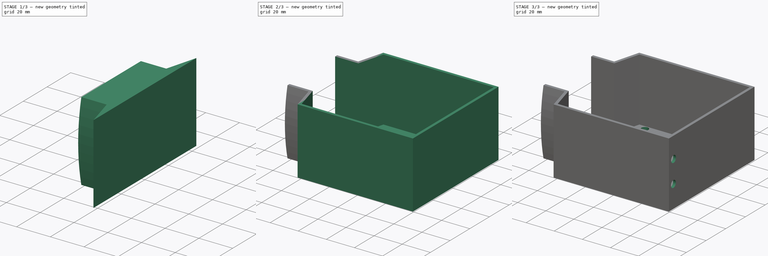
[diagram: build sequence overview — one tinted view per stage of 3, left to right]
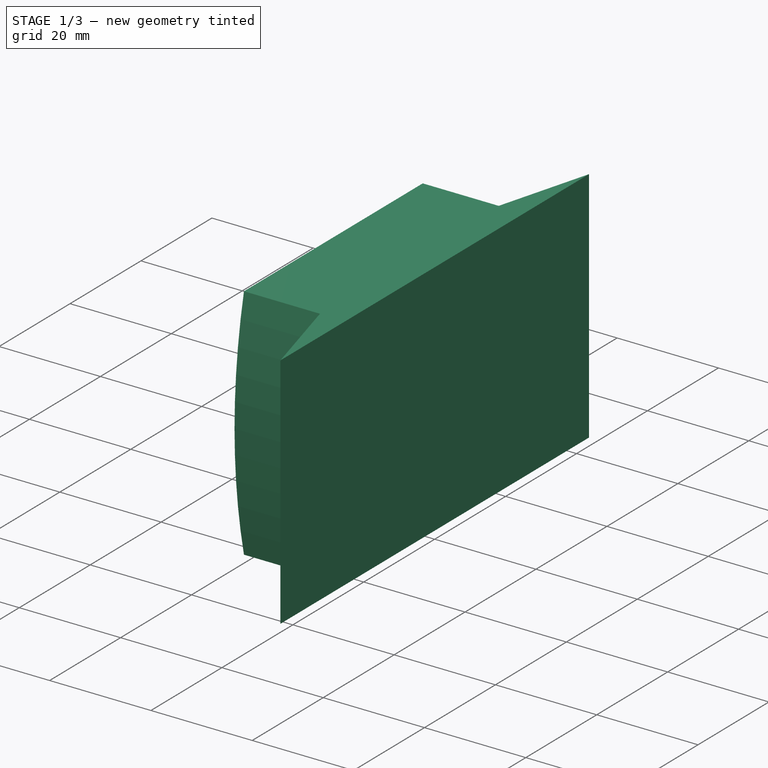
[diagram: stage 1 of 3 — iso view after this stage's code; geometry added in this stage tinted green]
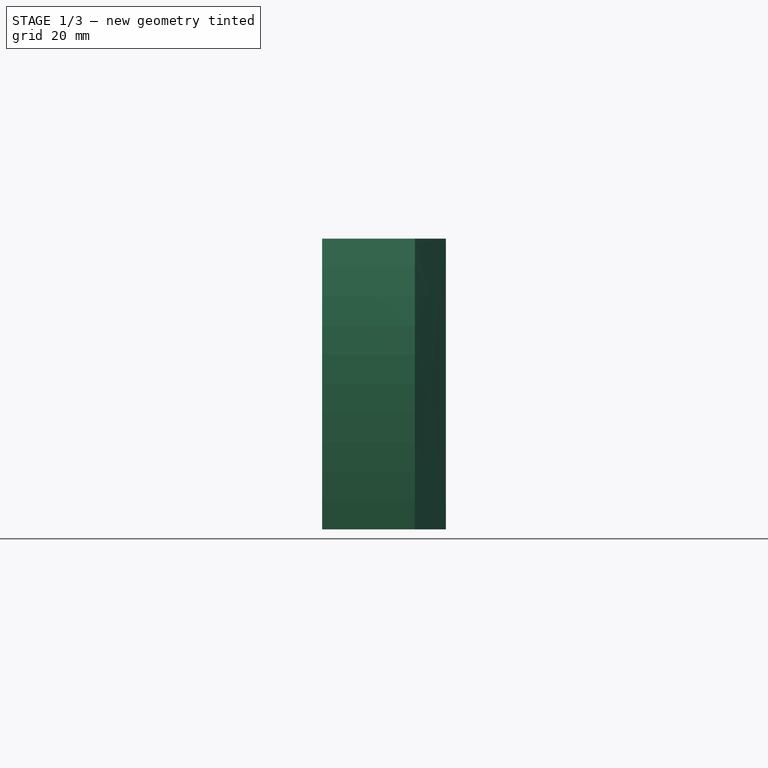
[diagram: stage 1 of 3 — front view after this stage's code; geometry added in this stage tinted green]
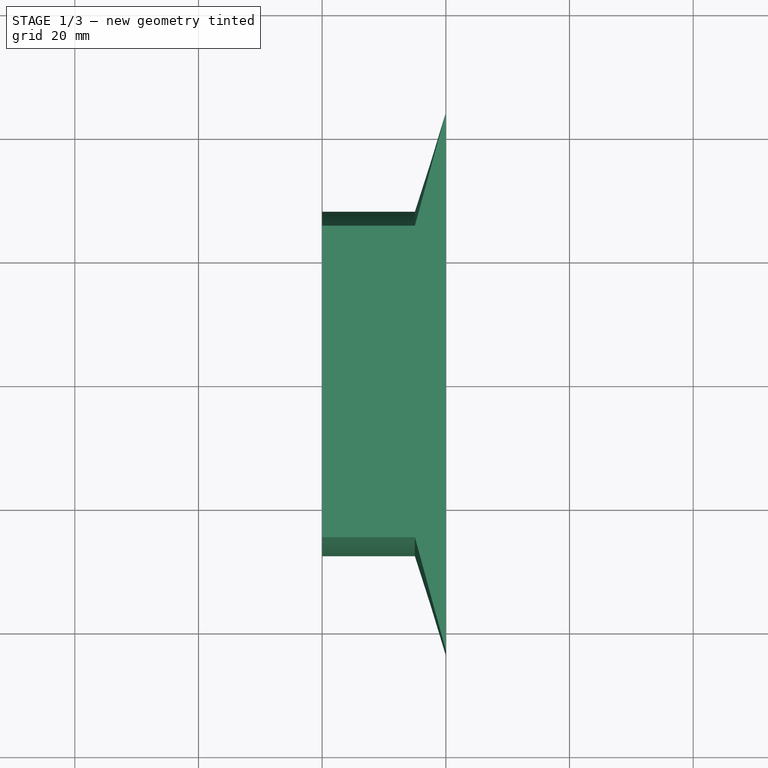
[diagram: stage 1 of 3 — top view after this stage's code; geometry added in this stage tinted green]
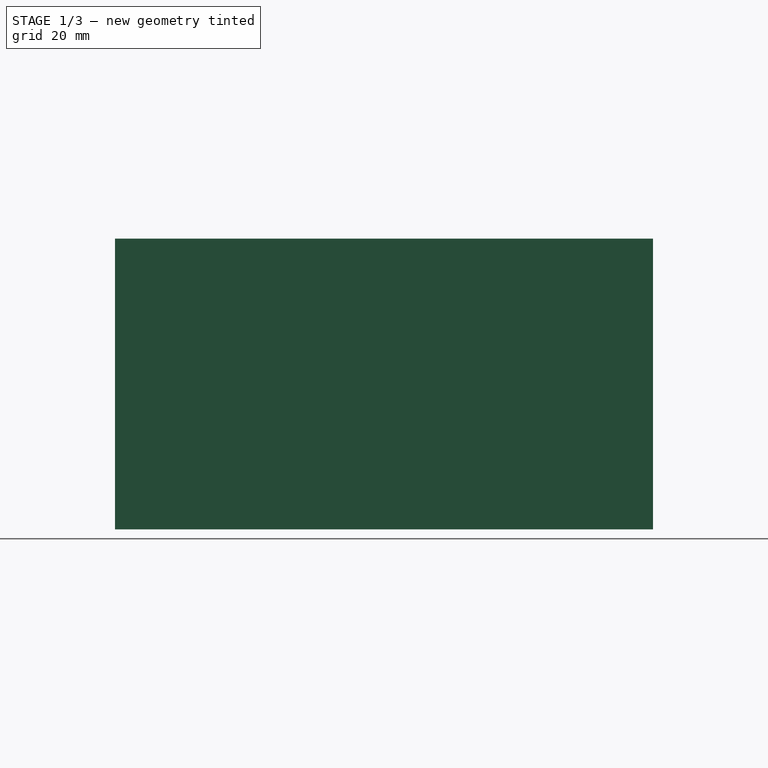
[diagram: stage 1 of 3 — right view after this stage's code; geometry added in this stage tinted green]
FCSTD DOCUMENT  (FreeCAD 0.18R16093 (Git))
Label: enclosure_body
License: All rights reserved
LicenseURL: http://en.wikipedia.org/wiki/All_rights_reserved
objects: Sketcher::SketchObject×7, PartDesign::Pocket×3, PartDesign::Pad×2, PartDesign::AdditiveLoft×1, PartDesign::Body×1
note: 20 computed .brp shape members not serialized (recipe doc carries the construction recipe); baked Part::Feature solids carry a one-line shape summary decoded from their .brp

FEATURE [Sketcher::SketchObject] Sketch
  MapMode = 5
  Placement = pos=(0,0,0) rot=(0.57735,0.57735,0.57735;2.0944rad)
  Support = -> [YZ_Plane]
  sketch-geometry (6):
    g0: LineSegment StartX=-25.2 StartY=23.5 StartZ=0 EndX=25.2 EndY=23.5 EndZ=0
    g1: LineSegment StartX=25.2 StartY=-23.5 StartZ=0 EndX=-25.2 EndY=-23.5 EndZ=0
    g2: ArcOfCircle CenterX=-77.2764 CenterY=1.32e-14 CenterZ=0 NormalX=0 NormalY=0 NormalZ=1 AngleXU=0 Radius=105.136 StartAngle=6.05776 EndAngle=6.50861
    g3: ArcOfCircle CenterX=77.2764 CenterY=8.1e-15 CenterZ=0 NormalX=0 NormalY=0 NormalZ=1 AngleXU=0 Radius=105.136 StartAngle=2.91617 EndAngle=3.36702
    g4: GeomPoint X=-27.86 Y=0 Z=0
    g5: GeomPoint X=27.86 Y=0 Z=0
  constraints (14):
    c: Symmetric(g0,g1,g-1)
    c: Symmetric(g0,g0,g-2)
    c: Symmetric(g1,g0,g-1)
    c: DistanceX(g0,g0) = 50.4
    c: DistanceY(g1,g0) = 47
    c: Coincident(g2,g0)
    c: Coincident(g2,g1)
    c: Coincident(g3,g0)
    c: Coincident(g3,g1)
    c: PointOnObject(g4,g3)
    c: PointOnObject(g4,g-1)
    c: PointOnObject(g5,g2)
    c: DistanceX(g4,g5) = 55.72
    c: Symmetric(g5,g4,g-2)
FEATURE [Sketcher::SketchObject] Sketch001
  AttachmentOffset = pos=(0,0,20) rot=(0,0,1;0rad)
  ExternalGeometry = -> [Sketch]
  MapMode = 5
  Placement = pos=(20,-4.4e-15,4.4e-15) rot=(0.57735,0.57735,0.57735;2.0944rad)
  Support = -> [YZ_Plane]
  sketch-geometry (4):
    g0: LineSegment StartX=-43.5 StartY=23.5 StartZ=0 EndX=43.5 EndY=23.5 EndZ=0
    g1: LineSegment StartX=43.5 StartY=23.5 StartZ=0 EndX=43.5 EndY=-23.5 EndZ=0
    g2: LineSegment StartX=43.5 StartY=-23.5 StartZ=0 EndX=-43.5 EndY=-23.5 EndZ=0
    g3: LineSegment StartX=-43.5 StartY=-23.5 StartZ=0 EndX=-43.5 EndY=23.5 EndZ=0
  constraints (10):
    c: Coincident(g0,g1)
    c: Coincident(g1,g2)
    c: Coincident(g2,g3)
    c: Coincident(g3,g0)
    c: Horizontal(g2)
    c: Vertical(g1)
    c: Symmetric(g0,g0,g-2)
    c: Symmetric(g2,g0,g-1)
    c: DistanceX(g0,g0) = 87
    c: Horizontal(g0,g-5)
FEATURE [PartDesign::Pad] Pad
  Length = 15
  Length2 = 100
  Placement = pos=(0,0,0) rot=(0.57735,0.57735,0.57735;2.0944rad)
  Profile = -> Sketch
  Type = 0
FEATURE [Sketcher::SketchObject] Sketch002
  ExternalGeometry = -> [Pad]
  MapMode = 5
  Placement = pos=(15,-3.3e-15,3.3e-15) rot=(0.57735,0.57735,0.57735;2.0944rad)
  Support = -> [Pad]
  sketch-geometry (6):
    g0: LineSegment StartX=-25.2 StartY=23.5 StartZ=0 EndX=25.2 EndY=23.5 EndZ=0
    g1: LineSegment StartX=-25.2 StartY=-23.5 StartZ=0 EndX=25.2 EndY=-23.5 EndZ=0
    g2: ArcOfCircle CenterX=-77.2764 CenterY=4.05e-14 CenterZ=0 NormalX=0 NormalY=0 NormalZ=1 AngleXU=0 Radius=105.136 StartAngle=6.05776 EndAngle=6.50861
    g3: GeomPoint X=27.86 Y=0 Z=0
    g4: GeomPoint X=27.86 Y=0 Z=0
    g5: ArcOfCircle CenterX=77.2764 CenterY=-1.06e-13 CenterZ=0 NormalX=0 NormalY=0 NormalZ=1 AngleXU=0 Radius=105.136 StartAngle=2.91617 EndAngle=3.36702
  constraints (13):
    c: Coincident(g0,g-5)
    c: Coincident(g0,g-4)
    c: Coincident(g1,g-6)
    c: Coincident(g1,g-6)
    c: Coincident(g2,g0)
    c: Coincident(g2,g1)
    c: PointOnObject(g3,g-3)
    c: PointOnObject(g3,g-1)
    c: PointOnObject(g4,g2)
    c: Coincident(g3,g4)
    c: Coincident(g5,g0)
    c: Coincident(g5,g1)
    c: Symmetric(g2,g5,g-2)
FEATURE [PartDesign::AdditiveLoft] AdditiveLoft
  BaseFeature = -> Pad
  Closed = false
  Placement = pos=(0,0,0) rot=(0.57735,0.57735,0.57735;2.0944rad)
  Profile = -> Sketch002
  Ruled = false
  Sections = -> [Sketch001]
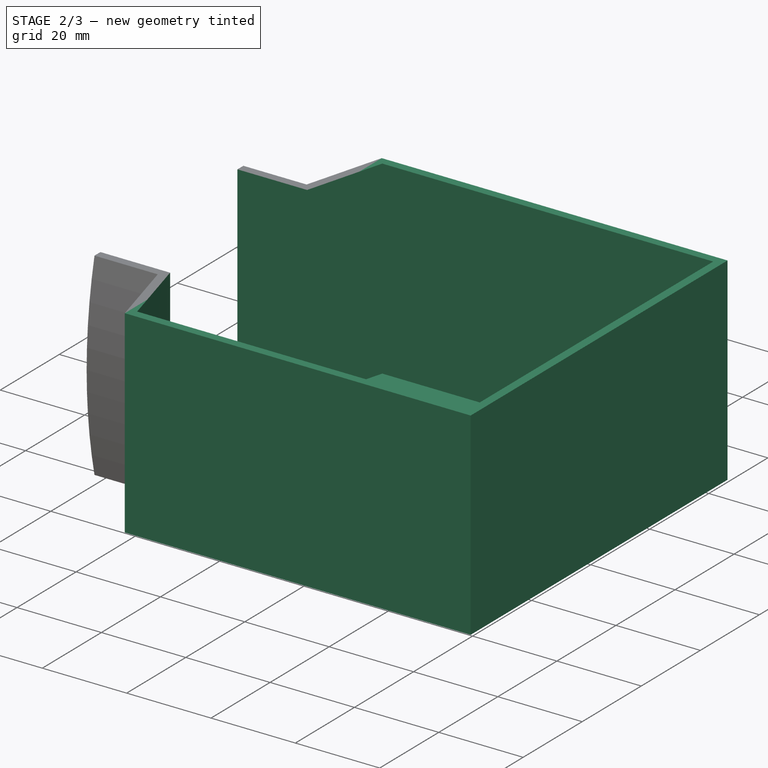
[diagram: stage 2 of 3 — iso view after this stage's code; geometry added in this stage tinted green]
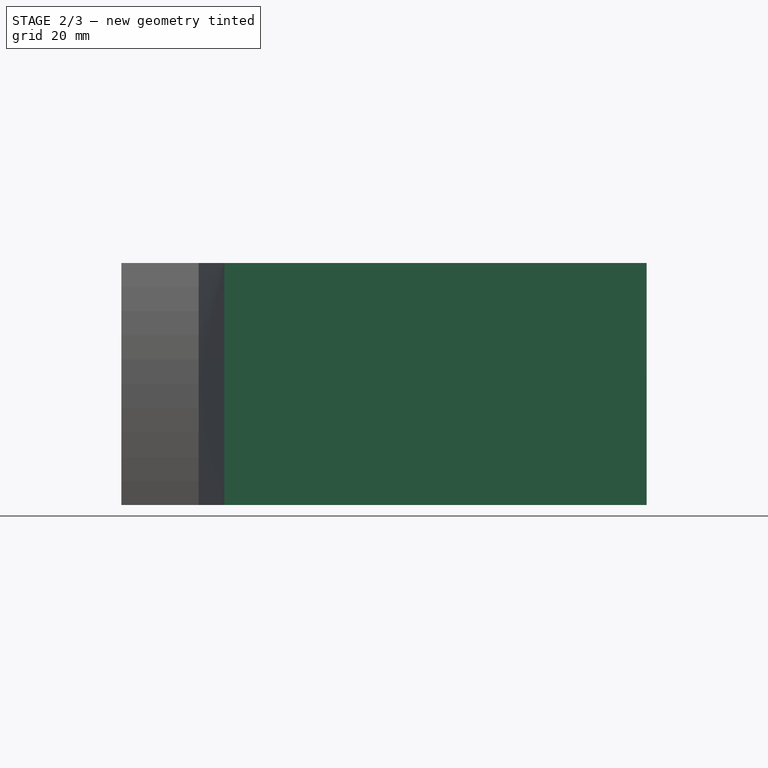
[diagram: stage 2 of 3 — front view after this stage's code; geometry added in this stage tinted green]
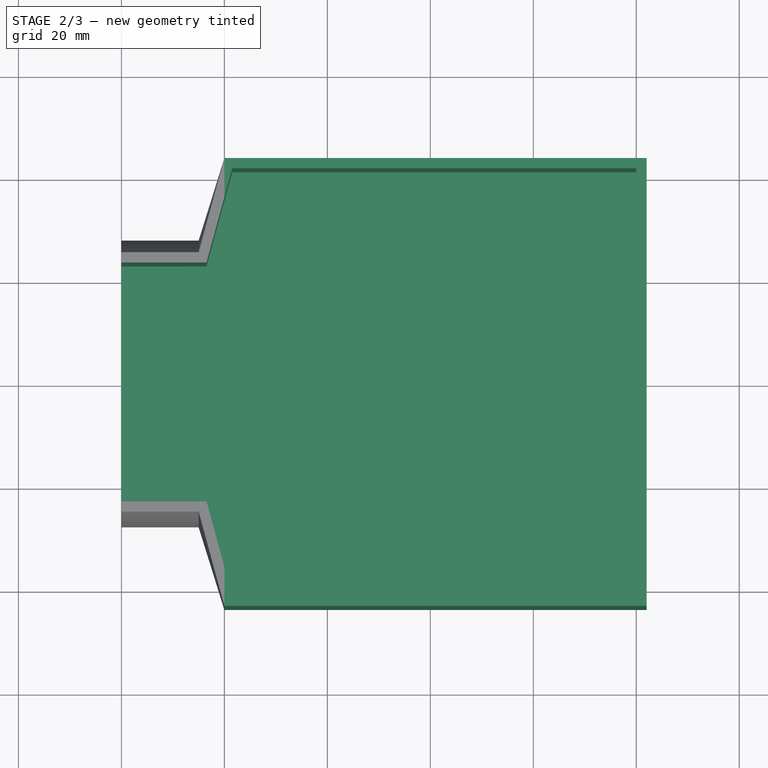
[diagram: stage 2 of 3 — top view after this stage's code; geometry added in this stage tinted green]
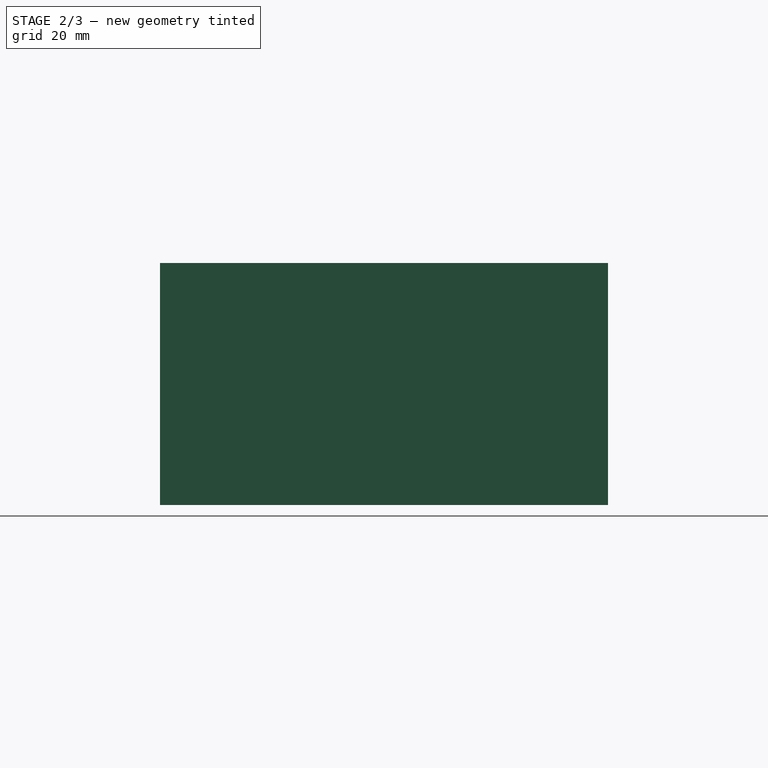
[diagram: stage 2 of 3 — right view after this stage's code; geometry added in this stage tinted green]
FEATURE [Sketcher::SketchObject] Sketch003
  ExternalGeometry = -> [AdditiveLoft]
  MapMode = 5
  Placement = pos=(20,-5e-15,9e-15) rot=(0.57735,0.57735,0.57735;2.0944rad)
  Support = -> [AdditiveLoft]
  sketch-geometry (4):
    g0: LineSegment StartX=-43.5 StartY=23.5 StartZ=0 EndX=43.5 EndY=23.5 EndZ=0
    g1: LineSegment StartX=43.5 StartY=23.5 StartZ=0 EndX=43.5 EndY=-23.5 EndZ=0
    g2: LineSegment StartX=43.5 StartY=-23.5 StartZ=0 EndX=-43.5 EndY=-23.5 EndZ=0
    g3: LineSegment StartX=-43.5 StartY=-23.5 StartZ=0 EndX=-43.5 EndY=23.5 EndZ=0
  constraints (9):
    c: Coincident(g0,g1)
    c: Coincident(g1,g2)
    c: Coincident(g2,g3)
    c: Coincident(g3,g0)
    c: Horizontal(g2)
    c: Vertical(g3)
    c: Symmetric(g0,g0,g-2)
    c: Symmetric(g1,g0,g-1)
    c: Coincident(g0,g-4)
FEATURE [PartDesign::Pad] Pad001
  BaseFeature = -> AdditiveLoft
  Length = 82
  Length2 = 100
  Placement = pos=(0,0,0) rot=(0.57735,0.57735,0.57735;2.0944rad)
  Profile = -> Sketch003
  Type = 0
FEATURE [Sketcher::SketchObject] Sketch008
  ExternalGeometry = -> [Pad001]
  MapMode = 5
  Placement = pos=(-1.57e-14,5.2e-15,23.5) rot=(0,0,-1;1.5708rad)
  Support = -> [Pad001]
  sketch-geometry (13):
    g0: LineSegment StartX=-41.5 StartY=100 StartZ=0 EndX=-41.5 EndY=21.5269 EndZ=0
    g1: LineSegment StartX=41.5 StartY=21.5269 StartZ=0 EndX=41.5 EndY=100 EndZ=0
    g2: LineSegment StartX=41.5 StartY=100 StartZ=0 EndX=-41.5 EndY=100 EndZ=0
    g3: LineSegment [constr] StartX=-43.5 StartY=20 StartZ=0 EndX=-25.2 EndY=15 EndZ=0
    g4: LineSegment StartX=41.5 StartY=21.5269 StartZ=0 EndX=23.2 EndY=16.5269 EndZ=0
    g5: LineSegment StartX=-41.5 StartY=21.5269 StartZ=0 EndX=-23.2 EndY=16.5269 EndZ=0
    g6: LineSegment [constr] StartX=40.705 StartY=17.2973 StartZ=0 EndX=39.0968 EndY=23.1832 EndZ=0
    g7: GeomPoint X=40.212 Y=19.1016 Z=0
    g8: GeomPoint X=39.6849 Y=21.0309 Z=0
    g9: LineSegment [constr] StartX=43.5 StartY=20 StartZ=0 EndX=25.2 EndY=15 EndZ=0
    g10: LineSegment StartX=23.2 StartY=16.5269 StartZ=0 EndX=23.2 EndY=-1.07e-14 EndZ=0
    g11: LineSegment StartX=-23.2 StartY=16.5269 StartZ=0 EndX=-23.2 EndY=-1.07e-14 EndZ=0
    g12: LineSegment StartX=-23.2 StartY=-1.04e-14 StartZ=0 EndX=23.2 EndY=-1.07e-14 EndZ=0
  constraints (30):
    c: Vertical(g0)
    c: Coincident(g1,g2)
    c: Coincident(g0,g2)
    c: DistanceX(g-10,g0) = 2
    c: Symmetric(g0,g1,g-2)
    c: Symmetric(g0,g1,g-2)
    c: DistanceY(g1,g-10) = 2
    c: Coincident(g-5,g3)
    c: Coincident(g3,g-11)
    c: Coincident(g4,g1)
    c: Coincident(g5,g0)
    c: Parallel(g5,g3)
    c: DistanceX(g3,g5) = 2
    c: Symmetric(g4,g5,g-2)
    c: Coincident(g9,g-12)
    c: Coincident(g9,g-11)
    c: PointOnObject(g7,g9)
    c: PointOnObject(g7,g6)
    c: PointOnObject(g8,g4)
    c: PointOnObject(g8,g6)
    c: Distance(g8,g7) = 2
    c: Block(g6)
    c: Coincident(g11,g5)
    c: Coincident(g10,g4)
    c: Vertical(g10)
    c: Vertical(g11)
    c: PointOnObject(g10,g-6)
    c: PointOnObject(g11,g-6)
    c: Coincident(g12,g10)
    c: Coincident(g12,g11)
FEATURE [PartDesign::Pocket] Pocket
  BaseFeature = -> Pad001
  Length = 45
  Length2 = 100
  Placement = pos=(0,0,0) rot=(0.57735,0.57735,0.57735;2.0944rad)
  Profile = -> Sketch008
  Type = 0
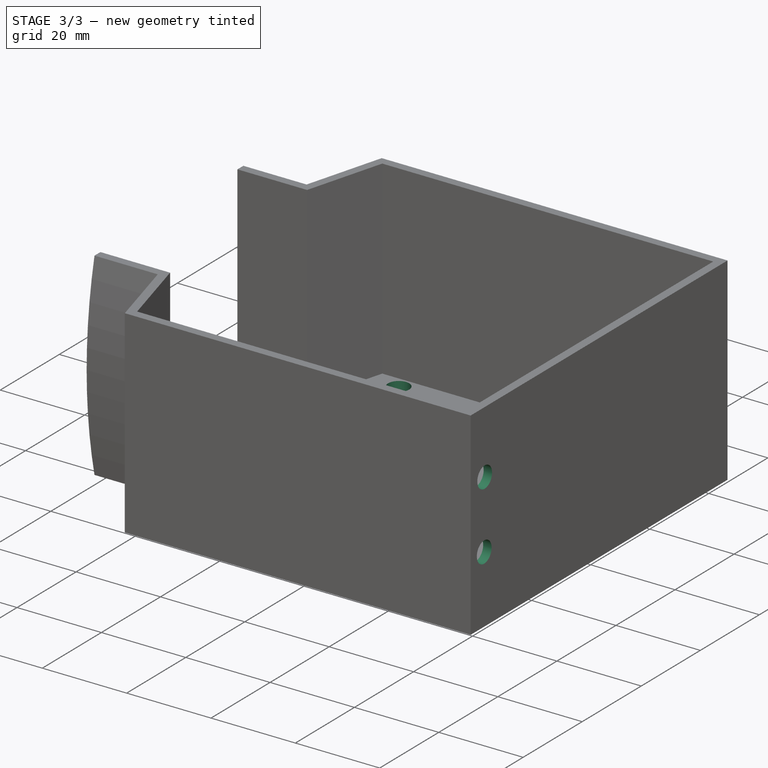
[diagram: stage 3 of 3 — iso view after this stage's code; geometry added in this stage tinted green]
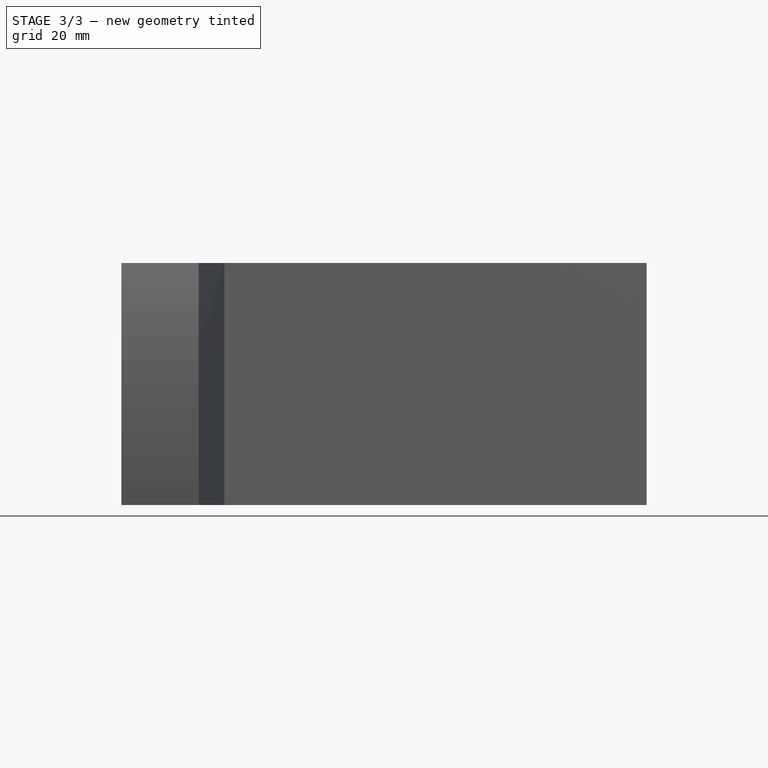
[diagram: stage 3 of 3 — front view after this stage's code; geometry added in this stage tinted green]
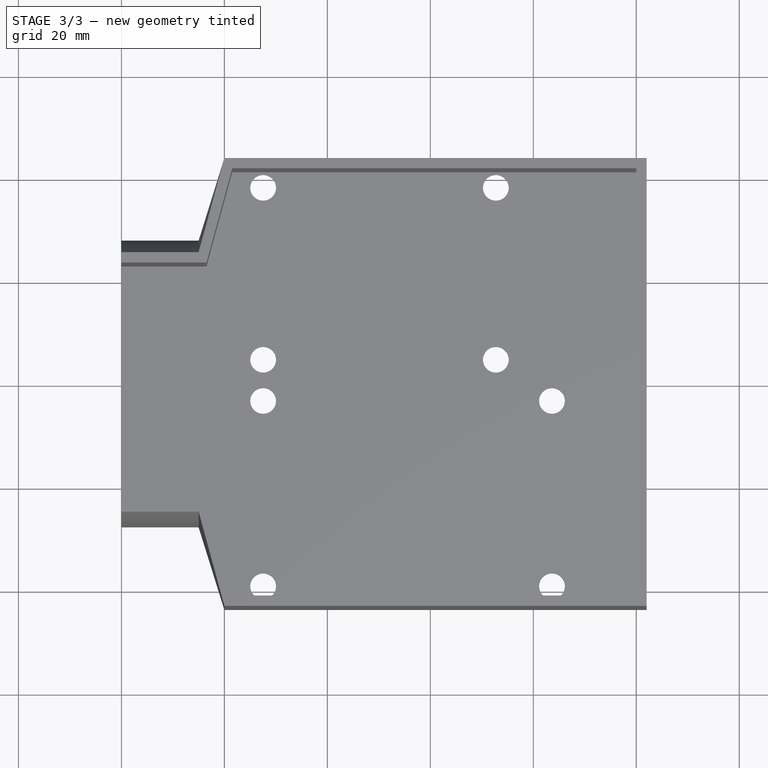
[diagram: stage 3 of 3 — top view after this stage's code; geometry added in this stage tinted green]
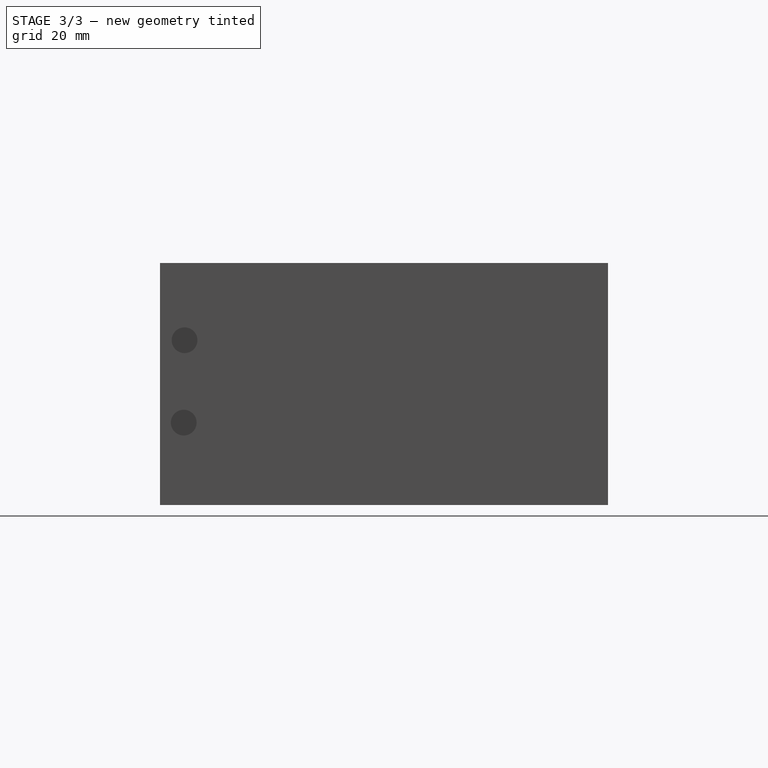
[diagram: stage 3 of 3 — right view after this stage's code; geometry added in this stage tinted green]
FEATURE [Sketcher::SketchObject] Sketch009
  ExternalGeometry = -> [Pocket]
  MapMode = 5
  Placement = pos=(1.68e-14,-7.3e-15,-21.5) rot=(0,0,-1;1.5708rad)
  Support = -> [Pocket]
  sketch-geometry (8):
    g0: Circle CenterX=-38.5 CenterY=27.5269 CenterZ=0 NormalX=0 NormalY=0 NormalZ=1 AngleXU=0 Radius=2.5
    g1: Circle CenterX=-5.1 CenterY=27.5269 CenterZ=0 NormalX=0 NormalY=0 NormalZ=1 AngleXU=0 Radius=2.5
    g2: Circle CenterX=-38.5 CenterY=72.7269 CenterZ=0 NormalX=0 NormalY=0 NormalZ=1 AngleXU=0 Radius=2.5
    g3: Circle CenterX=-5.1 CenterY=72.7269 CenterZ=0 NormalX=0 NormalY=0 NormalZ=1 AngleXU=0 Radius=2.5
    g4: Circle CenterX=2.9 CenterY=27.5269 CenterZ=0 NormalX=0 NormalY=0 NormalZ=1 AngleXU=0 Radius=2.5
    g5: Circle CenterX=38.9 CenterY=27.5269 CenterZ=0 NormalX=0 NormalY=0 NormalZ=1 AngleXU=0 Radius=2.5
    g6: Circle CenterX=2.9 CenterY=83.6269 CenterZ=0 NormalX=0 NormalY=0 NormalZ=1 AngleXU=0 Radius=2.5
    g7: Circle CenterX=38.9 CenterY=83.6269 CenterZ=0 NormalX=0 NormalY=0 NormalZ=1 AngleXU=0 Radius=2.5
  constraints (24):
    c: Diameter(g0) = 5
    c: Equal(g0,g1) = 4.5
    c: Horizontal(g1,g0)
    c: DistanceX(g0,g1) = 33.4
    c: DistanceX(g-3,g0) = 3
    c: DistanceY(g-3,g0) = 6
    c: Equal(g0,g2) = 4.5
    c: Vertical(g2,g0)
    c: Horizontal(g2,g3)
    c: DistanceY(g1,g3) = 45.2
    c: Equal(g3,g2)
    c: Vertical(g3,g1)
    c: Diameter(g4) = 5
    c: Equal(g4,g5) = 3.9
    c: Equal(g4,g6) = 3.9
    c: Vertical(g4,g6)
    c: Horizontal(g7,g6)
    c: Vertical(g7,g5)
    c: Horizontal(g5,g4)
    c: DistanceX(g4,g5) = 36
    c: DistanceY(g5,g7) = 56.1
    c: Horizontal(g4,g1)
    c: DistanceX(g1,g4) = 8
    c: Equal(g6,g7)
FEATURE [PartDesign::Pocket] Pocket001
  BaseFeature = -> Pocket
  Length = 5
  Length2 = 100
  Placement = pos=(0,0,0) rot=(0.57735,0.57735,0.57735;2.0944rad)
  Profile = -> Sketch009
  Type = 0
FEATURE [Sketcher::SketchObject] Sketch010
  ExternalGeometry = -> [Pocket001]
  MapMode = 5
  Placement = pos=(100,-2.2e-14,1.111e-13) rot=(0.57735,0.57735,-0.57735;4.18879rad)
  Support = -> [Pocket001]
  sketch-geometry (2):
    g0: Circle CenterX=-38.9 CenterY=7.5 CenterZ=0 NormalX=0 NormalY=0 NormalZ=1 AngleXU=0 Radius=2.5
    g1: Circle CenterX=-38.7369 CenterY=-8.5 CenterZ=0 NormalX=0 NormalY=0 NormalZ=1 AngleXU=0 Radius=2.5
  constraints (5):
    c: DistanceX(g0,g-1) = 38.9
    c: Diameter(g0) = 5
    c: Equal(g0,g1) = 5
    c: DistanceY(g1,g0) = 16
    c: DistanceY(g0,g-3) = 14
FEATURE [PartDesign::Pocket] Pocket002
  BaseFeature = -> Pocket001
  Length = 5
  Length2 = 100
  Placement = pos=(0,0,0) rot=(0.57735,0.57735,0.57735;2.0944rad)
  Profile = -> Sketch010
  Type = 0
FEATURE [PartDesign::Body] Body  label="Enclosure"
  Group = -> [Sketch,Pad,Sketch002,Sketch001,AdditiveLoft,Sketch003,Pad001,Sketch008,Pocket,Sketch009,Pocket001,Sketch010,Pocket002]
  Origin = -> Origin
  Tip = -> Pocket002
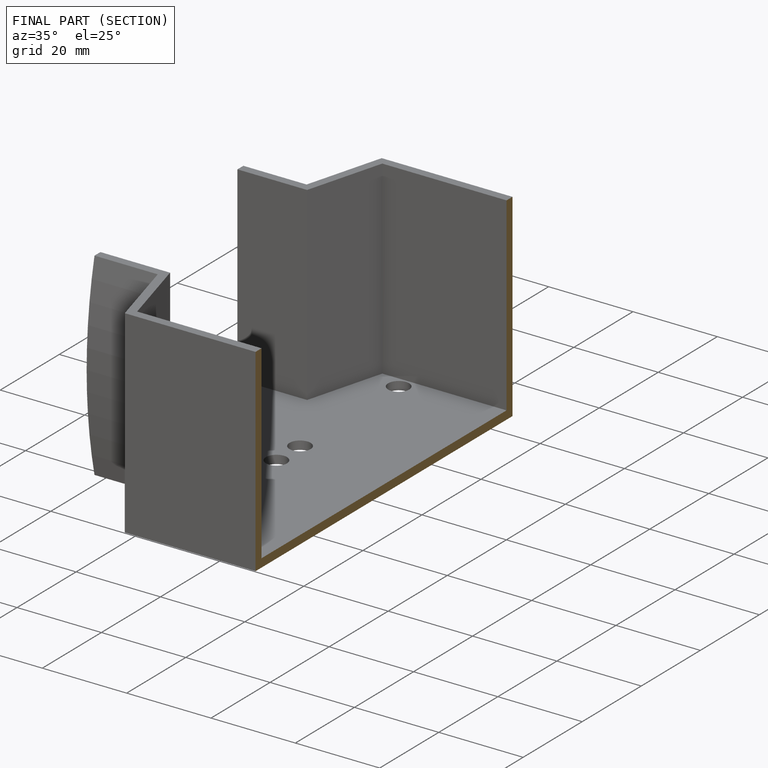
[diagram: finished part — half-section view (interior)]
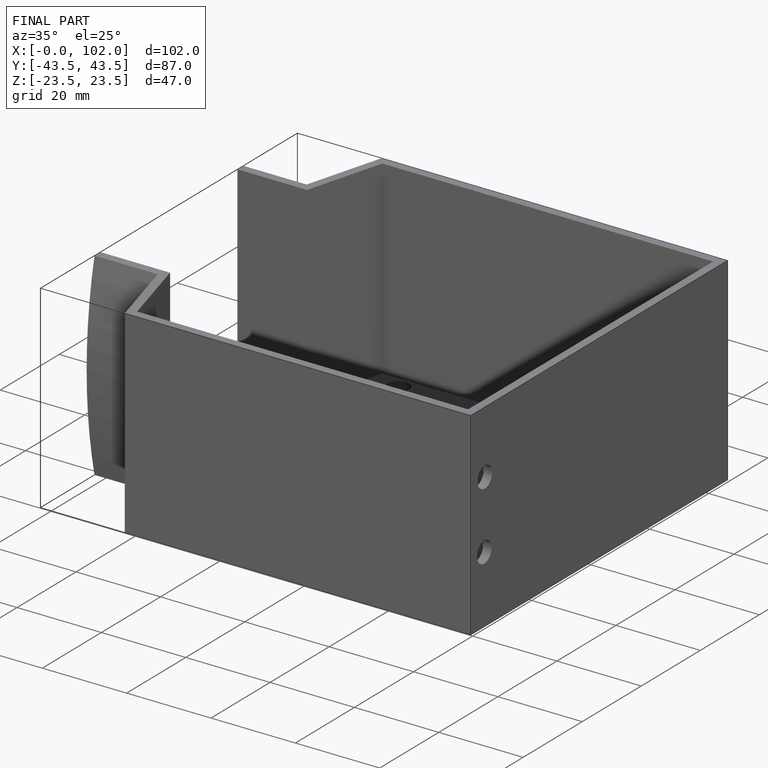
[diagram: finished part — iso view with bounding-box wireframe]
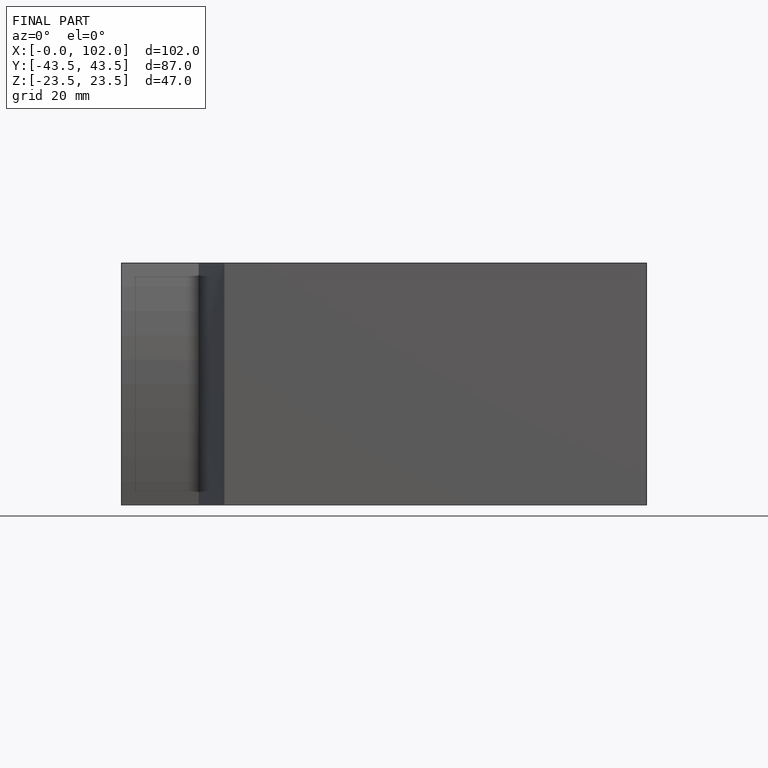
[diagram: finished part — front view with bounding-box wireframe]
